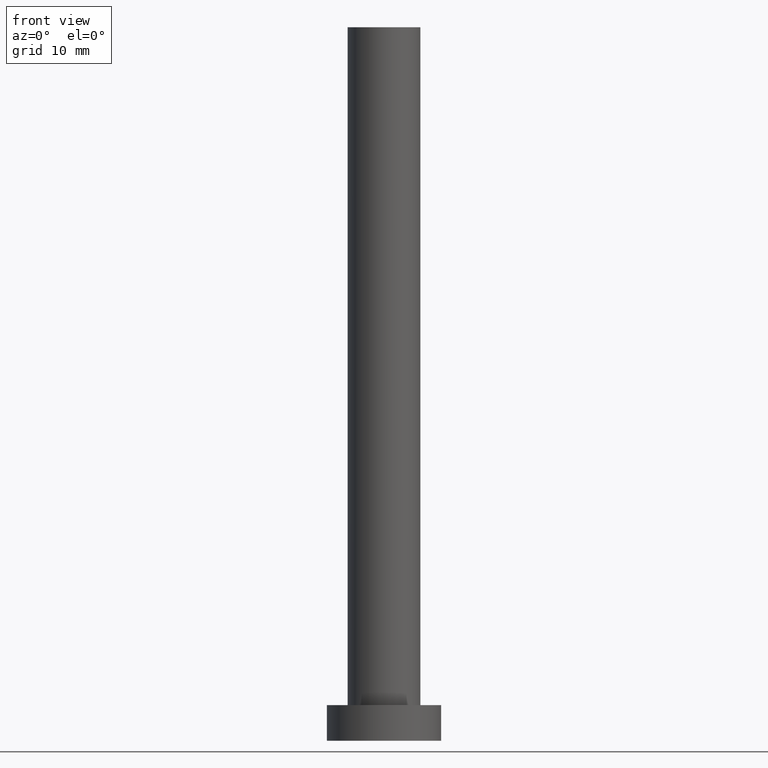
[diagram: clean part render]
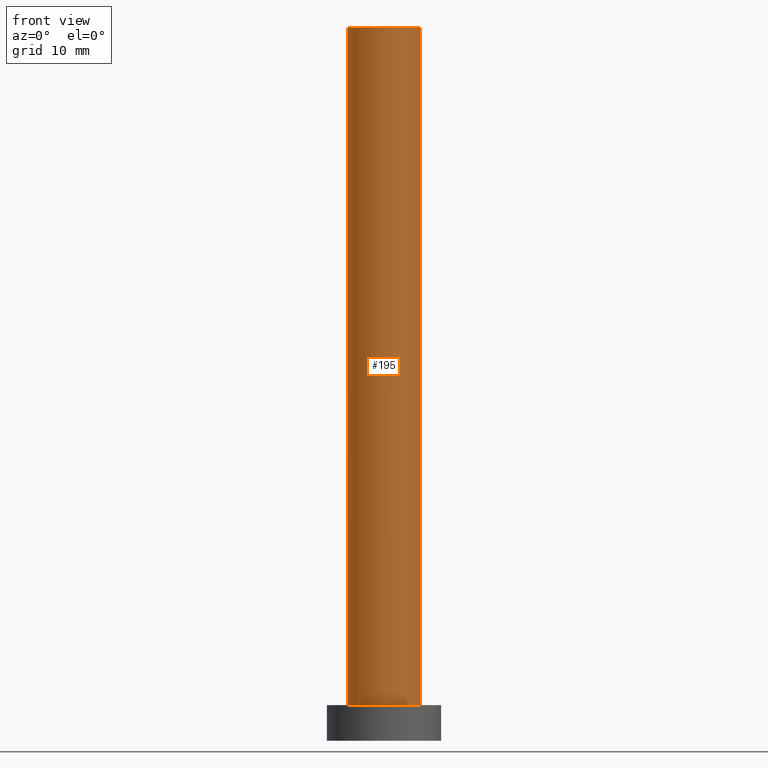
[diagram: same view with one face highlighted and labeled with its STEP entity id]
A machine part, front view. The second image highlights one B-rep face of the part: STEP entity #195.
In plain terms, the highlighted cylindrical surface (edge-blend (fillet) strip) has radius 5.1 mm, axis along (-0, -0, -1).
Its self-contained STEP definition (entity closure, byte-faithful):
#3 = VERTEX_POINT ( 'NONE', #41 ) ;
#4 = VECTOR ( 'NONE', #136, 1000.000000000000000 ) ;
#6 = VERTEX_POINT ( 'NONE', #222 ) ;
#18 = AXIS2_PLACEMENT_3D ( 'NONE', #133, #57, #88 ) ;
#20 = ORIENTED_EDGE ( 'NONE', *, *, #229, .F. ) ;
#30 = VERTEX_POINT ( 'NONE', #45 ) ;
#41 = CARTESIAN_POINT ( 'NONE',  ( -5.099999999999999645, 0.000000000000000000, 5.000000000000000000 ) ) ;
#45 = CARTESIAN_POINT ( 'NONE',  ( 5.099999999999999645, 6.245698675651500839E-16, 5.000000000000000000 ) ) ;
#57 = DIRECTION ( 'NONE',  ( 0.000000000000000000, 0.000000000000000000, 1.000000000000000000 ) ) ;
#61 = DIRECTION ( 'NONE',  ( -0.000000000000000000, -0.000000000000000000, -1.000000000000000000 ) ) ;
#64 = LINE ( 'NONE', #187, #4 ) ;
#67 = ORIENTED_EDGE ( 'NONE', *, *, #155, .T. ) ;
#69 = AXIS2_PLACEMENT_3D ( 'NONE', #234, #61, #89 ) ;
#87 = CARTESIAN_POINT ( 'NONE',  ( 0.000000000000000000, 0.000000000000000000, 5.000000000000000000 ) ) ;
#88 = DIRECTION ( 'NONE',  ( 1.000000000000000000, 0.000000000000000000, 0.000000000000000000 ) ) ;
#89 = DIRECTION ( 'NONE',  ( -1.000000000000000000, 0.000000000000000000, 0.000000000000000000 ) ) ;
#92 = ORIENTED_EDGE ( 'NONE', *, *, #140, .F. ) ;
#104 = CARTESIAN_POINT ( 'NONE',  ( 5.099999999999999645, 6.245698675651500839E-16, 100.0000000000000000 ) ) ;
#107 = VECTOR ( 'NONE', #214, 1000.000000000000000 ) ;
#118 = FACE_OUTER_BOUND ( 'NONE', #138, .T. ) ;
#133 = CARTESIAN_POINT ( 'NONE',  ( 0.000000000000000000, 0.000000000000000000, 100.0000000000000000 ) ) ;
#136 = DIRECTION ( 'NONE',  ( -0.000000000000000000, -0.000000000000000000, -1.000000000000000000 ) ) ;
#137 = CYLINDRICAL_SURFACE ( 'NONE', #69, 5.099999999999999645 ) ;
#138 = EDGE_LOOP ( 'NONE', ( #92, #20, #67, #162 ) ) ;
#140 = EDGE_CURVE ( 'NONE', #197, #30, #190, .T. ) ;
#150 = CARTESIAN_POINT ( 'NONE',  ( 5.099999999999999645, 6.245698675651500839E-16, 100.0000000000000000 ) ) ;
#155 = EDGE_CURVE ( 'NONE', #6, #3, #64, .T. ) ;
#156 = DIRECTION ( 'NONE',  ( 1.000000000000000000, 0.000000000000000000, 0.000000000000000000 ) ) ;
#162 = ORIENTED_EDGE ( 'NONE', *, *, #252, .T. ) ;
#187 = CARTESIAN_POINT ( 'NONE',  ( -5.099999999999999645, 0.000000000000000000, 100.0000000000000000 ) ) ;
#190 = LINE ( 'NONE', #150, #107 ) ;
#195 = ADVANCED_FACE ( 'NONE', ( #118 ), #137, .T. ) ;
#197 = VERTEX_POINT ( 'NONE', #104 ) ;
#214 = DIRECTION ( 'NONE',  ( -0.000000000000000000, -0.000000000000000000, -1.000000000000000000 ) ) ;
#216 = CIRCLE ( 'NONE', #18, 5.099999999999999645 ) ;
#220 = CIRCLE ( 'NONE', #238, 5.099999999999999645 ) ;
#222 = CARTESIAN_POINT ( 'NONE',  ( -5.099999999999999645, 0.000000000000000000, 100.0000000000000000 ) ) ;
#229 = EDGE_CURVE ( 'NONE', #6, #197, #216, .T. ) ;
#233 = DIRECTION ( 'NONE',  ( 0.000000000000000000, 0.000000000000000000, 1.000000000000000000 ) ) ;
#234 = CARTESIAN_POINT ( 'NONE',  ( 0.000000000000000000, 0.000000000000000000, 100.0000000000000000 ) ) ;
#238 = AXIS2_PLACEMENT_3D ( 'NONE', #87, #233, #156 ) ;
#252 = EDGE_CURVE ( 'NONE', #3, #30, #220, .T. ) ;